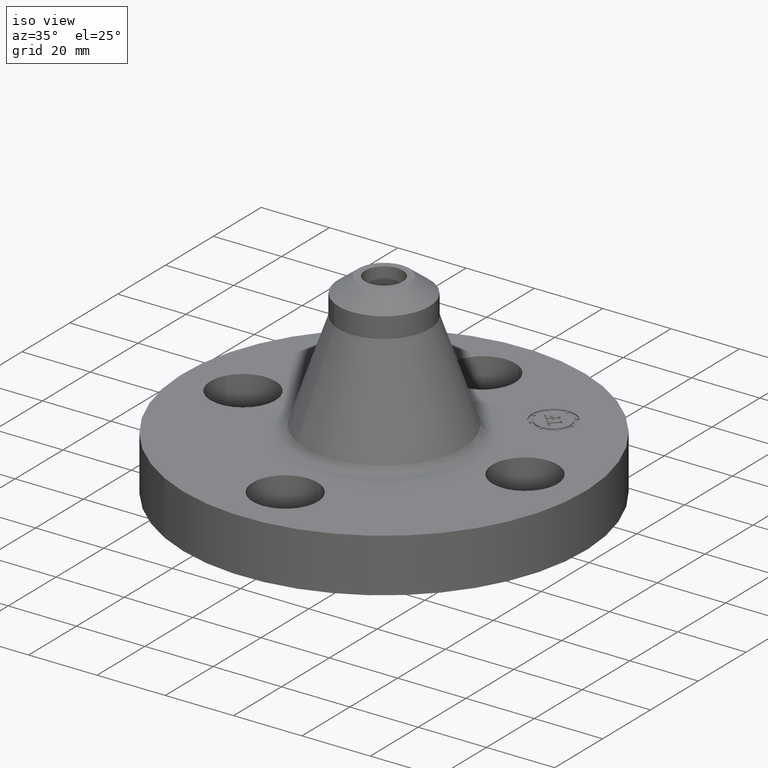
[diagram: clean part render]
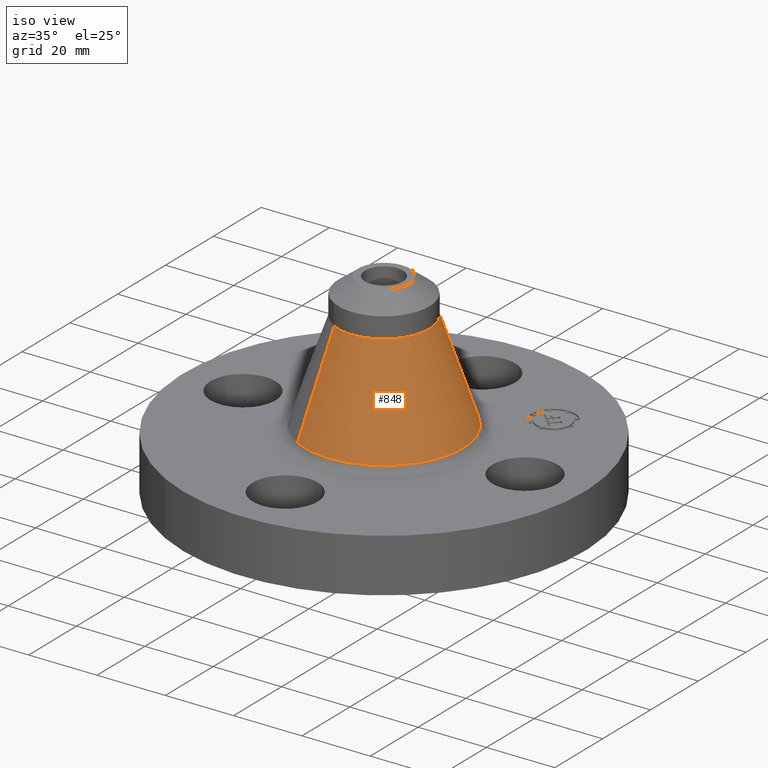
[diagram: same view with one face highlighted and labeled with its STEP entity id]
A machine part, iso view. The second image highlights one B-rep face of the part: STEP entity #848.
In plain terms, the highlighted conical surface has half-angle 18.817 deg.
Its self-contained STEP definition (entity closure, byte-faithful):
#667=AXIS2_PLACEMENT_3D('Circle Axis2P3D',#665,#666,$) ;
#835=AXIS2_PLACEMENT_3D('Cone Axis2P3D',#832,#833,#834) ;
#839=AXIS2_PLACEMENT_3D('Circle Axis2P3D',#837,#838,$) ;
#631=CARTESIAN_POINT('Vertex',(-0.437379010894,-0.800616909175,0.701294195606)) ;
#638=CARTESIAN_POINT('Vertex',(0.437379010894,0.800616909175,0.701294195606)) ;
#665=CARTESIAN_POINT('Axis2P3D Location',(0.,0.,0.701294195606)) ;
#799=CARTESIAN_POINT('Line Origine',(-0.344538709331,-0.630673877085,1.26957822938)) ;
#803=CARTESIAN_POINT('Vertex',(-0.251698407768,-0.460730844994,1.83786226314)) ;
#810=CARTESIAN_POINT('Vertex',(0.251698407768,0.460730844994,1.83786226314)) ;
#813=CARTESIAN_POINT('Line Origine',(0.344538709331,0.630673877085,1.26957822938)) ;
#832=CARTESIAN_POINT('Axis2P3D Location',(0.,0.,1.83786226314)) ;
#837=CARTESIAN_POINT('Axis2P3D Location',(0.,0.,1.83786226314)) ;
#666=DIRECTION('Axis2P3D Direction',(-0.,0.,-0.0393700787402)) ;
#800=DIRECTION('Vector Direction',(-0.00608810732267,-0.0111442057026,-0.0372658654601)) ;
#814=DIRECTION('Vector Direction',(0.00608810732267,0.0111442057026,-0.0372658654601)) ;
#833=DIRECTION('Axis2P3D Direction',(0.,0.,-0.0393700787402)) ;
#834=DIRECTION('Axis2P3D XDirection',(0.0188750212049,0.0345504945626,0.)) ;
#838=DIRECTION('Axis2P3D Direction',(-0.,0.,-0.0393700787402)) ;
#801=VECTOR('Line Direction',#800,0.0393700787402) ;
#815=VECTOR('Line Direction',#814,0.0393700787402) ;
#843=ORIENTED_EDGE('',*,*,#669,.F.) ;
#844=ORIENTED_EDGE('',*,*,#817,.T.) ;
#845=ORIENTED_EDGE('',*,*,#841,.T.) ;
#846=ORIENTED_EDGE('',*,*,#805,.F.) ;
#848=ADVANCED_FACE('PartBody',(#847),#836,.T.) ;
#668=CIRCLE('generated circle',#667,0.912298106118) ;
#840=CIRCLE('generated circle',#839,0.525000000002) ;
#836=CONICAL_SURFACE('Cone',#835,0.525000000002,0.328420520119) ;
#669=EDGE_CURVE('',#639,#632,#668,.T.) ;
#805=EDGE_CURVE('',#632,#804,#802,.F.) ;
#817=EDGE_CURVE('',#639,#811,#816,.F.) ;
#841=EDGE_CURVE('',#811,#804,#840,.T.) ;
#842=EDGE_LOOP('',(#843,#844,#845,#846)) ;
#847=FACE_OUTER_BOUND('',#842,.T.) ;
#802=LINE('Line',#799,#801) ;
#816=LINE('Line',#813,#815) ;
#632=VERTEX_POINT('',#631) ;
#639=VERTEX_POINT('',#638) ;
#804=VERTEX_POINT('',#803) ;
#811=VERTEX_POINT('',#810) ;